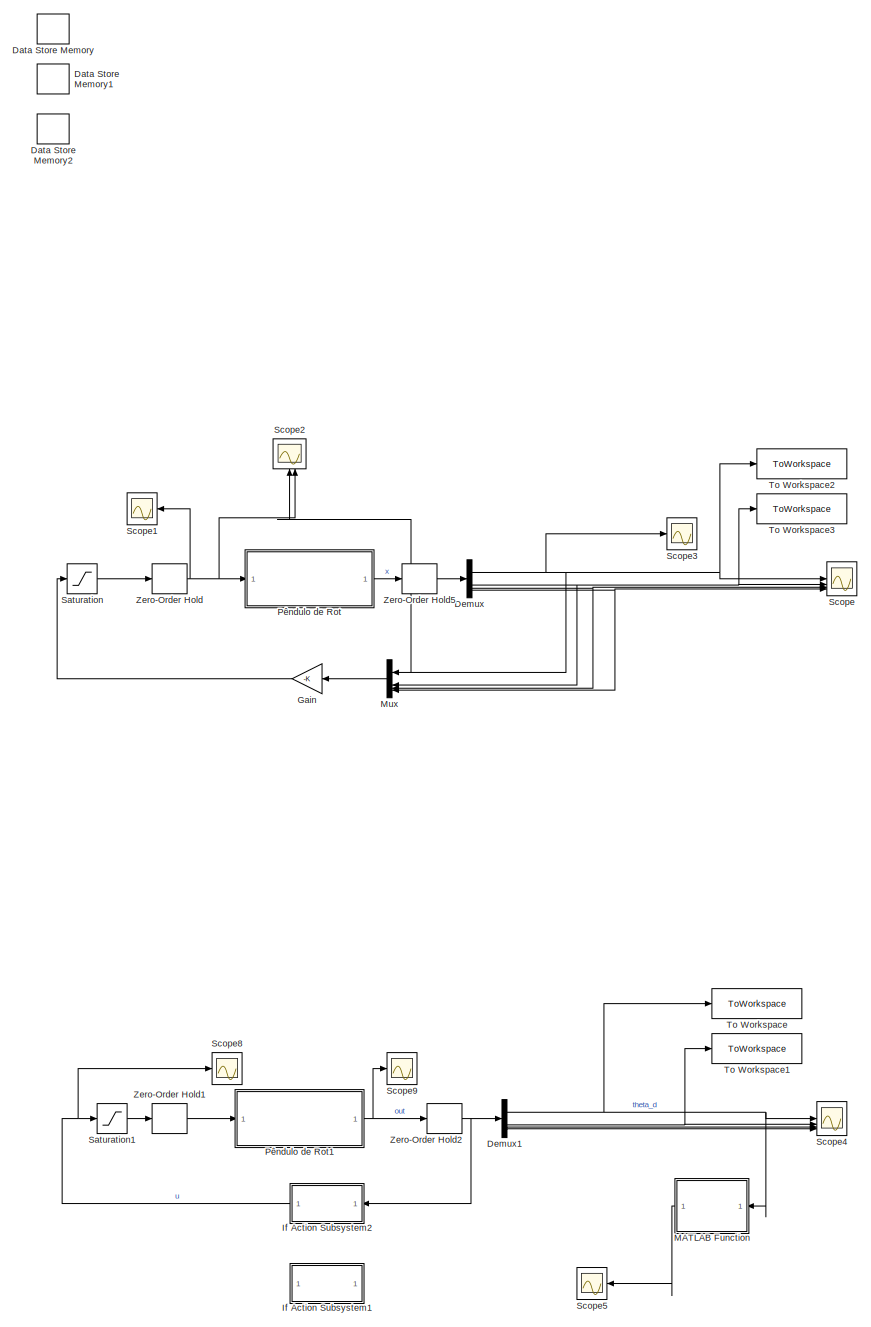
[diagram: root canvas - part 1/2, right side, full height]
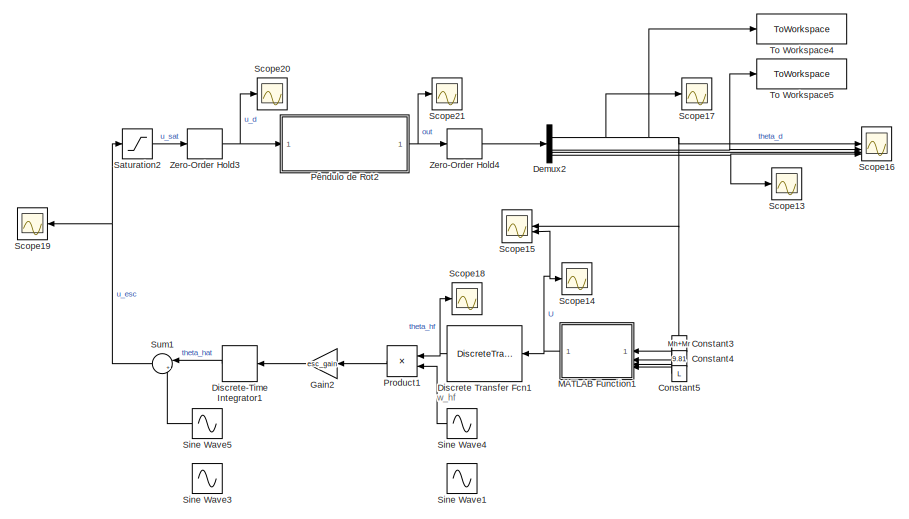
[diagram: root canvas - part 2/2, bottom left region]
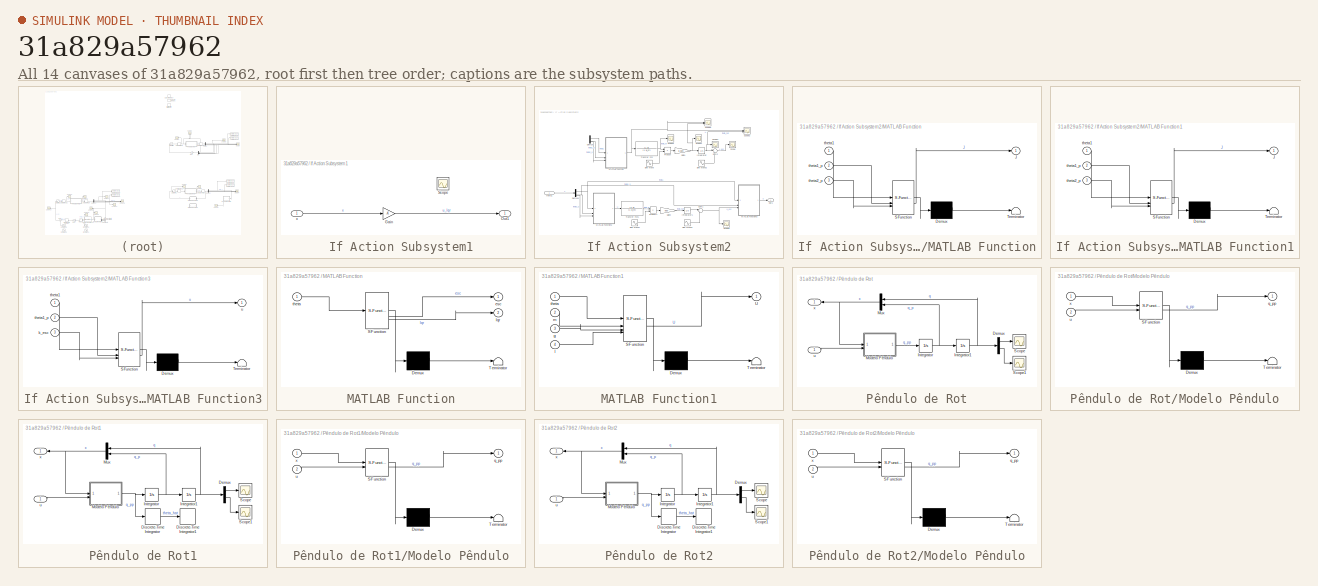
[diagram: thumbnail index - all 14 canvases of the model, root first then tree order]
MODEL slx_31a829a57962
KIND model
CONFIG AbsTol = auto
CONFIG EnableMultiTasking = on
CONFIG FixedStep = 1e-4
CONFIG MaxStep = auto
CONFIG MinStep = auto
CONFIG RelTol = 1e-3
CONFIG SampleTimeConstraint = Unconstrained
CONFIG SolverName = VariableStepAuto
CONFIG StartTime = 0.0
CONFIG StopFcn = send_to_visualizer(out.theta1_out, out.theta2_out)\n
CONFIG StopTime = 20
BLOCK [Constant] Constant3
  Commented = on
  Value = Mh+Mr
BLOCK [Constant] Constant4
  Commented = on
  Value = 9.81
BLOCK [Constant] Constant5
  Commented = on
  Value = L
BLOCK [DataStoreMemory] Data Store Memory
  DataStoreName = u_ant
  OutDataTypeStr = double
  ShowAdditionalParam = off
  SignalType = real
BLOCK [DataStoreMemory] Data Store Memory1
  DataStoreName = vel_uf_ant
  OutDataTypeStr = double
  ReadBeforeWriteMsg = warning
  ShowAdditionalParam = off
  SignalType = real
  WriteAfterReadMsg = warning
  WriteAfterWriteMsg = warning
BLOCK [DataStoreMemory] Data Store Memory2
  DataStoreName = vel_ant
  OutDataTypeStr = double
  ReadBeforeWriteMsg = warning
  ShowAdditionalParam = off
  SignalType = real
  WriteAfterReadMsg = warning
  WriteAfterWriteMsg = warning
BLOCK [Demux] Demux
  Commented = on
BLOCK [Demux] Demux1
BLOCK [Demux] Demux2
  Commented = on
BLOCK [DiscreteTransferFcn] Discrete Transfer Fcn1
  Commented = on
  Denominator = [den]
  InputPortMap = u0
  Numerator = [num]
BLOCK [DiscreteIntegrator] Discrete-Time Integrator1
  Commented = on
  ICPrevOutput = DiscIntNeverNeededParam
  ICPrevScaledInput = DiscIntNeverNeededParam
  InitialConditionSetting = Auto
  SampleTime = -1
BLOCK [Gain] Gain
  Commented = on
  Gain = -K
  Multiplication = Matrix(K*u)
BLOCK [Gain] Gain2
  Commented = on
  Gain = esc_gain
BLOCK [SubSystem] If Action Subsystem1
  Commented = on
  TreatAsAtomicUnit = on
BLOCK [Gain] If Action Subsystem1/Gain
  Gain = -K
  Multiplication = Matrix(K*u)
BLOCK [Outport] If Action Subsystem1/Out1
  IconDisplay = Signal name
BLOCK [Scope] If Action Subsystem1/Scope
  ActiveDisplayYMaximum = 69.774089352779029
  ActiveDisplayYMinimum = -4.4404726516390376
  DataLoggingVariableName = ScopeData12
  Floating = off
  GraphicalSettings = {"Style":{"BackgroundColor":[0.12941176470588237,0.12941176470588237,0.12941176470588237],"AxesColor":[0.07058823529411765,0.07058823529411765,0.07058823529411765],"LabelsColor":[0.8509803921568627,0.8509803921568627,0.8509803921568627],"PreserveColors":false,"Visible":[true],"LineStyle":["-"],"LineWidth":[1.5],"BarWidth":[0.9],"LineColor":["auto"],"LineFaceAlpha":[1],"LineEdgeAlpha":[1],"Marker":...<+1898ch>
  MultipleDisplayCache = [{"MaxYLimMag":69.774089352779029,"MaxYLimReal":69.774089352779029,"MinYLimMag":0,"MinYLimReal":-4.4404726516390376,"PlotAsMagnitudePhase":false,"ShowGrid":true,"ShowLegend":false,"Title":"%<SignalLabel>","YLabel":""}]
  NumInputPorts = 1
  ScopeFrameLocation = window
  WasSavedAsWebScope = on
  WindowPosition = [573.000000,270.000000,560.000000,420.000000,]
BLOCK [Inport] If Action Subsystem1/x
  IconDisplay = Signal name
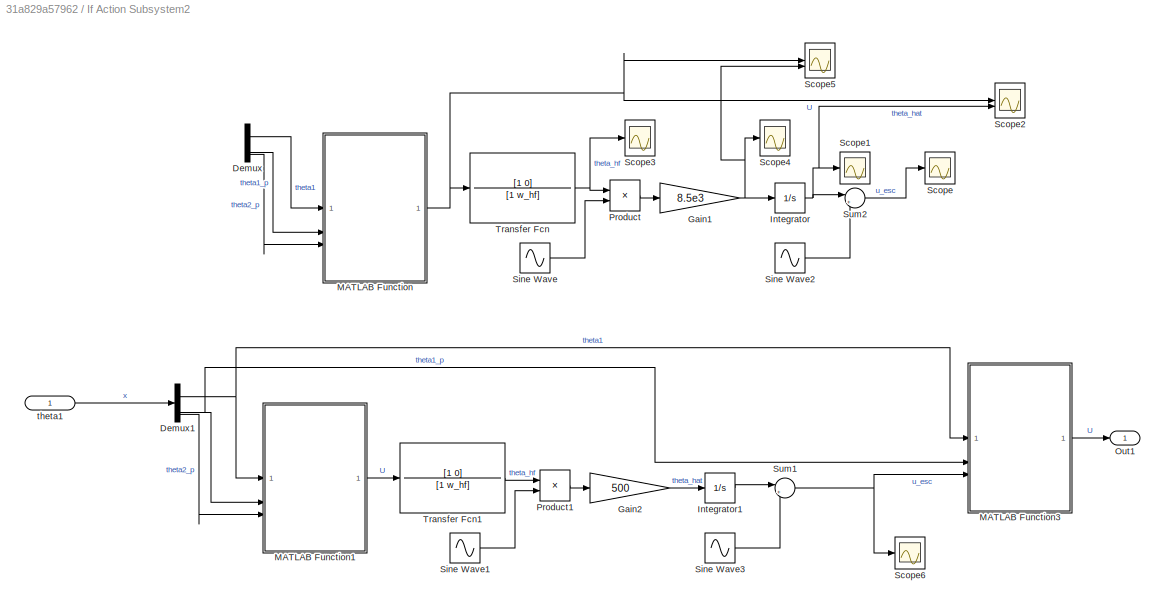
BLOCK [SubSystem] If Action Subsystem2
  TreatAsAtomicUnit = on
BLOCK [Demux] If Action Subsystem2/Demux
  Commented = on
BLOCK [Demux] If Action Subsystem2/Demux1
BLOCK [Gain] If Action Subsystem2/Gain1
  Commented = on
  Gain = 8.5e3
BLOCK [Gain] If Action Subsystem2/Gain2
  Gain = 500
BLOCK [Integrator] If Action Subsystem2/Integrator
  Commented = on
BLOCK [Integrator] If Action Subsystem2/Integrator1
  InitialCondition = k_init
BLOCK [SubSystem] If Action Subsystem2/MATLAB Function
  Commented = on
  ErrorFcn = Stateflow.Translate.translate
  PermitHierarchicalResolution = ExplicitOnly
  SFBlockType = MATLAB Function
  TreatAsAtomicUnit = on
BLOCK [Demux] If Action Subsystem2/MATLAB Function/ Demux 
  Outputs = 1
BLOCK [S-Function] If Action Subsystem2/MATLAB Function/ SFunction 
  EnableBusSupport = off
  FunctionName = sf_sfun
  Parameters = Jh,Jr,L,Mh,Mr,d
  PortCounts = [3 2]
  SFcnIsStateOwnerBlock = off
  SFunctionDeploymentMode = off
  Tag = Stateflow S-Function 7
BLOCK [Terminator] If Action Subsystem2/MATLAB Function/ Terminator 
BLOCK [Outport] If Action Subsystem2/MATLAB Function/J
BLOCK [Inport] If Action Subsystem2/MATLAB Function/theta1
BLOCK [Inport] If Action Subsystem2/MATLAB Function/theta1_p
  Port = 2
BLOCK [Inport] If Action Subsystem2/MATLAB Function/theta2_p
  Port = 3
BLOCK [SubSystem] If Action Subsystem2/MATLAB Function1
  ErrorFcn = Stateflow.Translate.translate
  PermitHierarchicalResolution = ExplicitOnly
  SFBlockType = MATLAB Function
  TreatAsAtomicUnit = on
BLOCK [Demux] If Action Subsystem2/MATLAB Function1/ Demux 
  Outputs = 1
BLOCK [S-Function] If Action Subsystem2/MATLAB Function1/ SFunction 
  EnableBusSupport = off
  FunctionName = sf_sfun
  Parameters = Jh,Jr,L,Mh,Mr,d
  PortCounts = [3 2]
  SFcnIsStateOwnerBlock = off
  SFunctionDeploymentMode = off
  Tag = Stateflow S-Function 6
BLOCK [Terminator] If Action Subsystem2/MATLAB Function1/ Terminator 
BLOCK [Outport] If Action Subsystem2/MATLAB Function1/J
BLOCK [Inport] If Action Subsystem2/MATLAB Function1/theta1
BLOCK [Inport] If Action Subsystem2/MATLAB Function1/theta1_p
  Port = 2
BLOCK [Inport] If Action Subsystem2/MATLAB Function1/theta2_p
  Port = 3
BLOCK [SubSystem] If Action Subsystem2/MATLAB Function3
  ErrorFcn = Stateflow.Translate.translate
  PermitHierarchicalResolution = ExplicitOnly
  SFBlockType = MATLAB Function
  TreatAsAtomicUnit = on
BLOCK [Demux] If Action Subsystem2/MATLAB Function3/ Demux 
  Outputs = 1
BLOCK [S-Function] If Action Subsystem2/MATLAB Function3/ SFunction 
  EnableBusSupport = off
  FunctionName = sf_sfun
  Parameters = Jh,L,Mh,Mr,d
  PortCounts = [3 2]
  SFcnIsStateOwnerBlock = off
  SFunctionDeploymentMode = off
  Tag = Stateflow S-Function 9
BLOCK [Terminator] If Action Subsystem2/MATLAB Function3/ Terminator 
BLOCK [Inport] If Action Subsystem2/MATLAB Function3/k_esc
  Port = 3
BLOCK [Inport] If Action Subsystem2/MATLAB Function3/theta1
BLOCK [Inport] If Action Subsystem2/MATLAB Function3/theta1_p
  Port = 2
BLOCK [Outport] If Action Subsystem2/MATLAB Function3/u
BLOCK [Outport] If Action Subsystem2/Out1
  IconDisplay = Signal name
BLOCK [Product] If Action Subsystem2/Product
  Commented = on
BLOCK [Product] If Action Subsystem2/Product1
BLOCK [Scope] If Action Subsystem2/Scope
  ActiveDisplayYMaximum = 1
  ActiveDisplayYMinimum = -1
  Commented = on
  DataLoggingVariableName = ScopeData13
  Floating = off
  GraphicalSettings = {"Style":{"BackgroundColor":[0.12941176470588237,0.12941176470588237,0.12941176470588237],"AxesColor":[0.07058823529411765,0.07058823529411765,0.07058823529411765],"LabelsColor":[0.8509803921568627,0.8509803921568627,0.8509803921568627],"PreserveColors":false,"Visible":[true],"LineStyle":["-"],"LineWidth":[1.5],"BarWidth":[0.9],"LineColor":["auto"],"LineFaceAlpha":[1],"LineEdgeAlpha":[1],"Marker":...<+1892ch>
  MultipleDisplayCache = [{"MaxYLimMag":1,"MaxYLimReal":1,"MinYLimMag":0,"MinYLimReal":-1,"PlotAsMagnitudePhase":false,"ShowGrid":true,"ShowLegend":false,"Title":"%<SignalLabel>","YLabel":""}]
  NumInputPorts = 1
  ScopeFrameLocation = window
  WasSavedAsWebScope = on
  WindowPosition = [573.000000,270.000000,560.000000,420.000000,]
BLOCK [Scope] If Action Subsystem2/Scope1
  ActiveDisplayYMaximum = -0.96848992459031114
  ActiveDisplayYMinimum = -3.2058024078374254
  Commented = on
  DataLoggingVariableName = ScopeData14
  Floating = off
  GraphicalSettings = {"AxesScalingProperties":{"AlignXAxis":"Center","AlignYAxis":"Center","AutoScaleXAxisLimits":false,"AxesScaling":"Manual","AxesScalingNumUpdates":10,"ExpandOnly":true,"ScaleAxesLimitsAtStop":false,"XAxisDataRange":100,"YAxisDataRange":80},"DisplayProperties":{"ColorOrder":["auto","auto","auto","auto","auto","auto","auto","auto","auto","auto","auto","auto","auto","auto","auto","auto","auto","auto",...<+2012ch>
  MultipleDisplayCache = [{"MaxYLimMag":3.5773774346009053,"MaxYLimReal":-0.96848992459031114,"MinYLimMag":0,"MinYLimReal":-3.2058024078374254,"PlotAsMagnitudePhase":false,"ShowGrid":true,"ShowLegend":false,"Title":"%<SignalLabel>","YLabel":""}]
  NumInputPorts = 1
  ScopeFrameLocation = window
  WasSavedAsWebScope = on
  WindowPosition = [0.000000,36.000000,1707.000000,889.000000,]
BLOCK [Scope] If Action Subsystem2/Scope2
  ActiveDisplayYMaximum = 0.054695354489563641
  ActiveDisplayYMinimum = -3.3789414590063629
  Commented = on
  DataLoggingVariableName = ScopeData7
  Floating = off
  GraphicalSettings = {"Style":{"BackgroundColor":[0.12941176470588237,0.12941176470588237,0.12941176470588237],"AxesColor":[0.07058823529411765,0.07058823529411765,0.07058823529411765],"LabelsColor":[0.8509803921568627,0.8509803921568627,0.8509803921568627],"PreserveColors":false,"Visible":[true,true],"LineStyle":["-","-"],"LineWidth":[1.5,1.5],"BarWidth":[0.9,0.9],"LineColor":["auto","auto"],"LineFaceAlpha":[1,1],"Li...<+2106ch>
  MultipleDisplayCache = [{"MaxYLimMag":3.5773774346009053,"MaxYLimReal":0.054695354489563641,"MinYLimMag":0,"MinYLimReal":-3.3789414590063629,"PlotAsMagnitudePhase":false,"ShowGrid":true,"ShowLegend":false,"Title":"%<SignalLabel>","YLabel":""}]
  NumInputPorts = 2
  ScopeFrameLocation = window
  WasSavedAsWebScope = on
  WindowPosition = [228.000000,42.000000,560.000000,420.000000,]
BLOCK [Scope] If Action Subsystem2/Scope3
  ActiveDisplayYMaximum = 0.013260172312204901
  ActiveDisplayYMinimum = -0.021431987322528941
  Commented = on
  DataLoggingVariableName = ScopeData8
  Floating = off
  GraphicalSettings = {"AxesScalingProperties":{"AlignXAxis":"Center","AlignYAxis":"Center","AutoScaleXAxisLimits":false,"AxesScaling":"Manual","AxesScalingNumUpdates":10,"ExpandOnly":true,"ScaleAxesLimitsAtStop":false,"XAxisDataRange":100,"YAxisDataRange":80},"DisplayProperties":{"ColorOrder":["auto","auto","auto","auto","auto","auto","auto","auto","auto","auto","auto","auto","auto","auto","auto","auto","auto","auto",...<+2016ch>
  MultipleDisplayCache = [{"MaxYLimMag":0.53995318792398028,"MaxYLimReal":0.013260172312204901,"MinYLimMag":0,"MinYLimReal":-0.021431987322528941,"PlotAsMagnitudePhase":false,"ShowGrid":true,"ShowLegend":false,"Title":"%<SignalLabel>","YLabel":""}]
  NumInputPorts = 1
  ScopeFrameLocation = window
  WasSavedAsWebScope = on
  WindowPosition = [1.000000,49.000000,1707.000000,889.000000,]
BLOCK [Scope] If Action Subsystem2/Scope4
  ActiveDisplayYMaximum = 8.6338341823384948
  ActiveDisplayYMinimum = -4.2044520300748793
  Commented = on
  DataLoggingVariableName = ScopeData24
  Floating = off
  GraphicalSettings = {"AxesScalingProperties":{"AlignXAxis":"Center","AlignYAxis":"Center","AutoScaleXAxisLimits":false,"AxesScaling":"Manual","AxesScalingNumUpdates":10,"ExpandOnly":true,"ScaleAxesLimitsAtStop":false,"XAxisDataRange":100,"YAxisDataRange":80},"DisplayProperties":{"ColorOrder":["auto","auto","auto","auto","auto","auto","auto","auto","auto","auto","auto","auto","auto","auto","auto","auto","auto","auto",...<+2002ch>
  MultipleDisplayCache = [{"MaxYLimMag":2460.2753626934718,"MaxYLimReal":8.6338341823384948,"MinYLimMag":0,"MinYLimReal":-4.2044520300748793,"PlotAsMagnitudePhase":false,"ShowGrid":true,"ShowLegend":false,"Title":"%<SignalLabel>","YLabel":""}]
  NumInputPorts = 1
  ScopeFrameLocation = window
  WasSavedAsWebScope = on
  WindowPosition = [1.000000,49.000000,1707.000000,889.000000,]
BLOCK [Scope] If Action Subsystem2/Scope5
  ActiveDisplayYMaximum = 0.58612214942196117
  ActiveDisplayYMinimum = -0.24757580720707464
  Commented = on
  DataLoggingVariableName = ScopeData25
  Floating = off
  GraphicalSettings = {"Style":{"BackgroundColor":[0.12941176470588237,0.12941176470588237,0.12941176470588237],"AxesColor":[0.07058823529411765,0.07058823529411765,0.07058823529411765],"LabelsColor":[0.8509803921568627,0.8509803921568627,0.8509803921568627],"PreserveColors":false,"Visible":[true,true],"LineStyle":["-","-"],"LineWidth":[1.5,1.5],"BarWidth":[0.9,0.9],"LineColor":["auto","auto"],"LineFaceAlpha":[1,1],"Li...<+2098ch>
  MultipleDisplayCache = [{"MaxYLimMag":2460.2753626934718,"MaxYLimReal":0.58612214942196117,"MinYLimMag":0,"MinYLimReal":-0.24757580720707464,"PlotAsMagnitudePhase":false,"ShowGrid":true,"ShowLegend":true,"Title":"%<SignalLabel>","YLabel":""}]
  NumInputPorts = 2
  ScopeFrameLocation = window
  ShowLegend = on
  Visible = on
  WasSavedAsWebScope = on
  WindowPosition = [1.000000,49.000000,1707.000000,889.000000,]
BLOCK [Scope] If Action Subsystem2/Scope6
  ActiveDisplayYMaximum = 1
  ActiveDisplayYMinimum = -1
  DataLoggingVariableName = ScopeData26
  Floating = off
  GraphicalSettings = {"Style":{"BackgroundColor":[0.12941176470588237,0.12941176470588237,0.12941176470588237],"AxesColor":[0.07058823529411765,0.07058823529411765,0.07058823529411765],"LabelsColor":[0.8509803921568627,0.8509803921568627,0.8509803921568627],"PreserveColors":false,"Visible":[true],"LineStyle":["-"],"LineWidth":[1.5],"BarWidth":[0.9],"LineColor":["auto"],"LineFaceAlpha":[1],"LineEdgeAlpha":[1],"Marker":...<+1898ch>
  MultipleDisplayCache = [{"MaxYLimMag":1,"MaxYLimReal":1,"MinYLimMag":0,"MinYLimReal":-1,"PlotAsMagnitudePhase":false,"ShowGrid":true,"ShowLegend":false,"Title":"%<SignalLabel>","YLabel":""}]
  NumInputPorts = 1
  ScopeFrameLocation = window
  WasSavedAsWebScope = on
  WindowPosition = [1.000000,49.000000,1707.000000,889.000000,]
BLOCK [Sin] If Action Subsystem2/Sine Wave
  Commented = on
  Frequency = mod_freq
  SampleTime = 0
  Samples = round(2*pi/(mod_freq*2e-4))
BLOCK [Sin] If Action Subsystem2/Sine Wave1
  Frequency = mod_freq
  SampleTime = 0
  Samples = round(2*pi/(mod_freq*2e-4))
BLOCK [Sin] If Action Subsystem2/Sine Wave2
  Amplitude = 0.05
  Commented = on
  Frequency = mod_freq
  SampleTime = 0
  Samples = round(2*pi/(mod_freq*2e-4))
BLOCK [Sin] If Action Subsystem2/Sine Wave3
  Amplitude = esc_amp
  Frequency = mod_freq
  SampleTime = 0
  Samples = round(2*pi/(mod_freq*2e-4))
BLOCK [Sum] If Action Subsystem2/Sum1
  Inputs = |++
BLOCK [Sum] If Action Subsystem2/Sum2
  Commented = on
  Inputs = |++
BLOCK [TransferFcn] If Action Subsystem2/Transfer Fcn
  Commented = on
  Denominator = [1 w_hf]
  Numerator = [1 0]
BLOCK [TransferFcn] If Action Subsystem2/Transfer Fcn1
  Denominator = [1 w_hf]
  Numerator = [1 0]
BLOCK [Inport] If Action Subsystem2/theta1
  IconDisplay = Signal name
BLOCK [SubSystem] MATLAB Function
  Commented = on
  ErrorFcn = Stateflow.Translate.translate
  PermitHierarchicalResolution = ExplicitOnly
  SFBlockType = MATLAB Function
  TreatAsAtomicUnit = on
BLOCK [Demux] MATLAB Function/ Demux 
  Outputs = 1
BLOCK [S-Function] MATLAB Function/ SFunction 
  EnableBusSupport = off
  FunctionName = sf_sfun
  PortCounts = [1 3]
  SFcnIsStateOwnerBlock = off
  SFunctionDeploymentMode = off
  Tag = Stateflow S-Function 3
BLOCK [Terminator] MATLAB Function/ Terminator 
BLOCK [Outport] MATLAB Function/esc
BLOCK [Outport] MATLAB Function/lqr
  Port = 2
BLOCK [Inport] MATLAB Function/theta
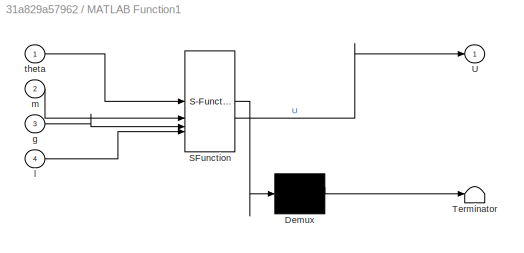
BLOCK [SubSystem] MATLAB Function1
  Commented = on
  ErrorFcn = Stateflow.Translate.translate
  PermitHierarchicalResolution = ExplicitOnly
  SFBlockType = MATLAB Function
  TreatAsAtomicUnit = on
BLOCK [Demux] MATLAB Function1/ Demux 
  Outputs = 1
BLOCK [S-Function] MATLAB Function1/ SFunction 
  EnableBusSupport = off
  FunctionName = sf_sfun
  PortCounts = [4 2]
  SFcnIsStateOwnerBlock = off
  SFunctionDeploymentMode = off
  Tag = Stateflow S-Function 4
BLOCK [Terminator] MATLAB Function1/ Terminator 
BLOCK [Outport] MATLAB Function1/U
BLOCK [Inport] MATLAB Function1/g
  Port = 3
BLOCK [Inport] MATLAB Function1/l
  Port = 4
BLOCK [Inport] MATLAB Function1/m
  Port = 2
BLOCK [Inport] MATLAB Function1/theta
BLOCK [Mux] Mux
  Commented = on
  DisplayOption = bar
BLOCK [Product] Product1
  Commented = on
BLOCK [SubSystem] Pêndulo de Rot
  Commented = on
BLOCK [Demux] Pêndulo de Rot/Demux
  Outputs = 2
BLOCK [Integrator] Pêndulo de Rot/Integrator
  InitialCondition = xp_ic
BLOCK [Integrator] Pêndulo de Rot/Integrator1
  InitialCondition = x_ic
BLOCK [SubSystem] Pêndulo de Rot/Modelo Pêndulo
  ErrorFcn = Stateflow.Translate.translate
  PermitHierarchicalResolution = ExplicitOnly
  SFBlockType = MATLAB Function
  TreatAsAtomicUnit = on
BLOCK [Demux] Pêndulo de Rot/Modelo Pêndulo/ Demux 
  Outputs = 1
BLOCK [S-Function] Pêndulo de Rot/Modelo Pêndulo/ SFunction 
  EnableBusSupport = off
  FunctionName = sf_sfun
  PortCounts = [2 2]
  SFcnIsStateOwnerBlock = off
  SFunctionDeploymentMode = off
  Tag = Stateflow S-Function 1
BLOCK [Terminator] Pêndulo de Rot/Modelo Pêndulo/ Terminator 
BLOCK [Outport] Pêndulo de Rot/Modelo Pêndulo/q_pp
BLOCK [Inport] Pêndulo de Rot/Modelo Pêndulo/u
  Port = 2
BLOCK [Inport] Pêndulo de Rot/Modelo Pêndulo/x
BLOCK [Mux] Pêndulo de Rot/Mux
  DisplayOption = bar
  Inputs = 2
  NameLocation = top
BLOCK [Scope] Pêndulo de Rot/Scope
  ActiveDisplayYMaximum = 6.9006379196709613
  ActiveDisplayYMinimum = -4.469489019623639
  DataLoggingVariableName = ScopeData1
  Floating = off
  GraphicalSettings = {"Style":{"BackgroundColor":[0.12941176470588237,0.12941176470588237,0.12941176470588237],"AxesColor":[0.07058823529411765,0.07058823529411765,0.07058823529411765],"LabelsColor":[0.8509803921568627,0.8509803921568627,0.8509803921568627],"PreserveColors":false,"Visible":[true],"LineStyle":["-"],"LineWidth":[1.5],"BarWidth":[0.9],"LineColor":["auto"],"LineFaceAlpha":[1],"LineEdgeAlpha":[1],"Marker":...<+1993ch>  <repeated x6 — deduplicated; at blocks: Scope, Scope1>
  MultipleDisplayCache = [{"MaxYLimMag":3.5343116838670472,"MaxYLimReal":6.9006379196709613,"MinYLimMag":0,"MinYLimReal":-4.469489019623639,"PlotAsMagnitudePhase":false,"ShowGrid":true,"ShowLegend":true,"Title":"%<SignalLabel>","YLabel":""}]  <repeated x6 — deduplicated; at blocks: Scope, Scope1>
  NumInputPorts = 1
  ScopeFrameLocation = window
  ShowLegend = on
  WasSavedAsWebScope = on
  WindowPosition = [558.000000,439.000000,560.000000,420.000000,]
BLOCK [Scope] Pêndulo de Rot/Scope1
  ActiveDisplayYMaximum = 6.9006379196709613
  ActiveDisplayYMinimum = -4.469489019623639
  DataLoggingVariableName = ScopeData2
  Floating = off
  NumInputPorts = 1
  ScopeFrameLocation = window
  ShowLegend = on
  WasSavedAsWebScope = on
  WindowPosition = [558.000000,439.000000,560.000000,420.000000,]
BLOCK [Inport] Pêndulo de Rot/u
BLOCK [Outport] Pêndulo de Rot/x
BLOCK [SubSystem] Pêndulo de Rot1
BLOCK [Demux] Pêndulo de Rot1/Demux
  Outputs = 2
BLOCK [DiscreteIntegrator] Pêndulo de Rot1/Discrete-Time Integrator
  Commented = on
  ICPrevOutput = DiscIntNeverNeededParam
  ICPrevScaledInput = DiscIntNeverNeededParam
  InitialCondition = xp_ic
  InitialConditionSetting = Auto
  SampleTime = -1
BLOCK [DiscreteIntegrator] Pêndulo de Rot1/Discrete-Time Integrator1
  Commented = on
  ICPrevOutput = DiscIntNeverNeededParam
  ICPrevScaledInput = DiscIntNeverNeededParam
  InitialCondition = x_ic
  InitialConditionSetting = Auto
  SampleTime = -1
BLOCK [Integrator] Pêndulo de Rot1/Integrator
  InitialCondition = xp_ic
BLOCK [Integrator] Pêndulo de Rot1/Integrator1
  InitialCondition = x_ic
BLOCK [SubSystem] Pêndulo de Rot1/Modelo Pêndulo
  ErrorFcn = Stateflow.Translate.translate
  PermitHierarchicalResolution = ExplicitOnly
  SFBlockType = MATLAB Function
  TreatAsAtomicUnit = on
BLOCK [Demux] Pêndulo de Rot1/Modelo Pêndulo/ Demux 
  Outputs = 1
BLOCK [S-Function] Pêndulo de Rot1/Modelo Pêndulo/ SFunction 
  EnableBusSupport = off
  FunctionName = sf_sfun
  PortCounts = [2 2]
  SFcnIsStateOwnerBlock = off
  SFunctionDeploymentMode = off
  Tag = Stateflow S-Function 2
BLOCK [Terminator] Pêndulo de Rot1/Modelo Pêndulo/ Terminator 
BLOCK [Outport] Pêndulo de Rot1/Modelo Pêndulo/q_pp
BLOCK [Inport] Pêndulo de Rot1/Modelo Pêndulo/u
  Port = 2
BLOCK [Inport] Pêndulo de Rot1/Modelo Pêndulo/x
BLOCK [Mux] Pêndulo de Rot1/Mux
  DisplayOption = bar
  Inputs = 2
  NameLocation = top
BLOCK [Scope] Pêndulo de Rot1/Scope
  ActiveDisplayYMaximum = 6.9006379196709613
  ActiveDisplayYMinimum = -4.469489019623639
  DataLoggingVariableName = ScopeData1
  Floating = off
  NumInputPorts = 1
  ScopeFrameLocation = window
  ShowLegend = on
  WasSavedAsWebScope = on
  WindowPosition = [558.000000,439.000000,560.000000,420.000000,]
BLOCK [Scope] Pêndulo de Rot1/Scope1
  ActiveDisplayYMaximum = 6.9006379196709613
  ActiveDisplayYMinimum = -4.469489019623639
  DataLoggingVariableName = ScopeData2
  Floating = off
  NumInputPorts = 1
  ScopeFrameLocation = window
  ShowLegend = on
  WasSavedAsWebScope = on
  WindowPosition = [558.000000,439.000000,560.000000,420.000000,]
BLOCK [Inport] Pêndulo de Rot1/u
BLOCK [Outport] Pêndulo de Rot1/x
BLOCK [SubSystem] Pêndulo de Rot2
  Commented = on
BLOCK [Demux] Pêndulo de Rot2/Demux
  Outputs = 2
BLOCK [DiscreteIntegrator] Pêndulo de Rot2/Discrete-Time Integrator
  Commented = on
  ICPrevOutput = DiscIntNeverNeededParam
  ICPrevScaledInput = DiscIntNeverNeededParam
  InitialCondition = xp_ic
  InitialConditionSetting = Auto
  SampleTime = -1
BLOCK [DiscreteIntegrator] Pêndulo de Rot2/Discrete-Time Integrator1
  Commented = on
  ICPrevOutput = DiscIntNeverNeededParam
  ICPrevScaledInput = DiscIntNeverNeededParam
  InitialCondition = x_ic
  InitialConditionSetting = Auto
  SampleTime = -1
BLOCK [Integrator] Pêndulo de Rot2/Integrator
  InitialCondition = xp_ic
BLOCK [Integrator] Pêndulo de Rot2/Integrator1
  InitialCondition = x_ic
BLOCK [SubSystem] Pêndulo de Rot2/Modelo Pêndulo
  ErrorFcn = Stateflow.Translate.translate
  PermitHierarchicalResolution = ExplicitOnly
  SFBlockType = MATLAB Function
  TreatAsAtomicUnit = on
BLOCK [Demux] Pêndulo de Rot2/Modelo Pêndulo/ Demux 
  Outputs = 1
BLOCK [S-Function] Pêndulo de Rot2/Modelo Pêndulo/ SFunction 
  EnableBusSupport = off
  FunctionName = sf_sfun
  PortCounts = [2 2]
  SFcnIsStateOwnerBlock = off
  SFunctionDeploymentMode = off
  Tag = Stateflow S-Function 5
BLOCK [Terminator] Pêndulo de Rot2/Modelo Pêndulo/ Terminator 
BLOCK [Outport] Pêndulo de Rot2/Modelo Pêndulo/q_pp
BLOCK [Inport] Pêndulo de Rot2/Modelo Pêndulo/u
  Port = 2
BLOCK [Inport] Pêndulo de Rot2/Modelo Pêndulo/x
BLOCK [Mux] Pêndulo de Rot2/Mux
  DisplayOption = bar
  Inputs = 2
  NameLocation = top
BLOCK [Scope] Pêndulo de Rot2/Scope
  ActiveDisplayYMaximum = 6.9006379196709613
  ActiveDisplayYMinimum = -4.469489019623639
  DataLoggingVariableName = ScopeData1
  Floating = off
  NumInputPorts = 1
  ScopeFrameLocation = window
  ShowLegend = on
  WasSavedAsWebScope = on
  WindowPosition = [558.000000,439.000000,560.000000,420.000000,]
BLOCK [Scope] Pêndulo de Rot2/Scope1
  ActiveDisplayYMaximum = 6.9006379196709613
  ActiveDisplayYMinimum = -4.469489019623639
  DataLoggingVariableName = ScopeData2
  Floating = off
  NumInputPorts = 1
  ScopeFrameLocation = window
  ShowLegend = on
  WasSavedAsWebScope = on
  WindowPosition = [558.000000,439.000000,560.000000,420.000000,]
BLOCK [Inport] Pêndulo de Rot2/u
BLOCK [Outport] Pêndulo de Rot2/x
BLOCK [Saturate] Saturation
  Commented = on
  LowerLimit = -1
  UpperLimit = 1
BLOCK [Saturate] Saturation1
  LowerLimit = -1
  UpperLimit = 1
BLOCK [Saturate] Saturation2
  Commented = on
  LowerLimit = -12
  UpperLimit = 12
BLOCK [Scope] Scope
  ActiveDisplayYMaximum = 0.3018758336404363
  ActiveDisplayYMinimum = -0.098888624772432612
  Commented = on
  Floating = off
  GraphicalSettings = {"Style":{"BackgroundColor":[0.12941176470588237,0.12941176470588237,0.12941176470588237],"AxesColor":[0.07058823529411765,0.07058823529411765,0.07058823529411765],"LabelsColor":[0.8509803921568627,0.8509803921568627,0.8509803921568627],"PreserveColors":false,"Visible":[true,true,true,true],"LineStyle":["-","-","-","-"],"LineWidth":[1.5,1.5,1.5,1.5],"BarWidth":[0.9,0.9,0.9,0.9],"LineColor":["auto"...<+3286ch>
  LayoutDimensionsString = [4,1]
  MultipleDisplayCache = [{"MaxYLimMag":0.3018758336404363,"MaxYLimReal":0.3018758336404363,"MinYLimMag":0,"MinYLimReal":-0.098888624772432612,"PlotAsMagnitudePhase":false,"ShowGrid":true,"ShowLegend":false,"Title":"%<SignalLabel>","YLabel":""},{"MaxYLimMag":3.678100458711588,"MaxYLimReal":3.678100458711588,"MinYLimMag":0,"MinYLimReal":-0.40867782874573189,"PlotAsMagnitudePhase":false,"ShowGrid":true,"ShowLegend":false,"T...<+471ch>
  NumInputPorts = 4
  ScopeFrameLocation = window
  WasSavedAsWebScope = on
  WindowPosition = [414.000000,301.000000,560.000000,420.000000,]
BLOCK [Scope] Scope1
  ActiveDisplayYMaximum = 1.1
  ActiveDisplayYMinimum = 0.9
  Commented = on
  DataLoggingVariableName = ScopeData3
  Floating = off
  GraphicalSettings = {"Style":{"BackgroundColor":[0.12941176470588237,0.12941176470588237,0.12941176470588237],"AxesColor":[0.07058823529411765,0.07058823529411765,0.07058823529411765],"LabelsColor":[0.8509803921568627,0.8509803921568627,0.8509803921568627],"PreserveColors":false,"Visible":[true],"LineStyle":["-"],"LineWidth":[1.5],"BarWidth":[0.9],"LineColor":["auto"],"LineFaceAlpha":[1],"LineEdgeAlpha":[1],"Marker":...<+1927ch>
  MultipleDisplayCache = [{"MaxYLimMag":1.1,"MaxYLimReal":1.1,"MinYLimMag":0.9,"MinYLimReal":0.9,"PlotAsMagnitudePhase":false,"ShowGrid":true,"ShowLegend":false,"Title":"%<SignalLabel>","YLabel":""}]
  NumInputPorts = 1
  ScopeFrameLocation = window
  WasSavedAsWebScope = on
  WindowPosition = [137.000000,283.000000,560.000000,420.000000,]
BLOCK [Scope] Scope13
  ActiveDisplayYMaximum = 9.08544811182352
  ActiveDisplayYMinimum = -16.31486477328804
  Commented = on
  DataLoggingVariableName = ScopeData15
  Floating = off
  GraphicalSettings = {"Style":{"BackgroundColor":[0.12941176470588237,0.12941176470588237,0.12941176470588237],"AxesColor":[0.07058823529411765,0.07058823529411765,0.07058823529411765],"LabelsColor":[0.8509803921568627,0.8509803921568627,0.8509803921568627],"PreserveColors":false,"Visible":[true],"LineStyle":["-"],"LineWidth":[1.5],"BarWidth":[0.9],"LineColor":["auto"],"LineFaceAlpha":[1],"LineEdgeAlpha":[1],"Marker":...<+1995ch>
  MultipleDisplayCache = [{"MaxYLimMag":13.975862009209836,"MaxYLimReal":9.08544811182352,"MinYLimMag":0,"MinYLimReal":-16.31486477328804,"PlotAsMagnitudePhase":false,"ShowGrid":true,"ShowLegend":false,"Title":"%<SignalLabel>","YLabel":""}]
  NumInputPorts = 1
  ScopeFrameLocation = window
  WasSavedAsWebScope = on
  WindowPosition = [128.000000,120.000000,1383.000000,683.000000,]
BLOCK [Scope] Scope14
  ActiveDisplayYMaximum = 0.10098357051691505
  ActiveDisplayYMinimum = -0.9244908487241017
  Commented = on
  DataLoggingVariableName = ScopeData16
  Floating = off
  GraphicalSettings = {"Style":{"BackgroundColor":[0.12941176470588237,0.12941176470588237,0.12941176470588237],"AxesColor":[0.07058823529411765,0.07058823529411765,0.07058823529411765],"LabelsColor":[0.8509803921568627,0.8509803921568627,0.8509803921568627],"PreserveColors":false,"Visible":[true],"LineStyle":["-"],"LineWidth":[1.5],"BarWidth":[0.9],"LineColor":["auto"],"LineFaceAlpha":[1],"LineEdgeAlpha":[1],"Marker":...<+1981ch>
  MultipleDisplayCache = [{"MaxYLimMag":0.9244908487241017,"MaxYLimReal":0.10098357051691505,"MinYLimMag":0,"MinYLimReal":-0.9244908487241017,"PlotAsMagnitudePhase":false,"ShowGrid":true,"ShowLegend":false,"Title":"%<SignalLabel>","YLabel":""}]
  NumInputPorts = 1
  ScopeFrameLocation = window
  WasSavedAsWebScope = on
  WindowPosition = [128.000000,120.000000,1383.000000,683.000000,]
BLOCK [Scope] Scope15
  ActiveDisplayYMaximum = 5.2203237501157735
  ActiveDisplayYMinimum = 4.2300428343533376
  Commented = on
  DataLoggingVariableName = ScopeData17
  Floating = off
  GraphicalSettings = {"AxesScalingProperties":{"AlignXAxis":"Center","AlignYAxis":"Center","AutoScaleXAxisLimits":false,"AxesScaling":"Manual","AxesScalingNumUpdates":10,"ExpandOnly":true,"ScaleAxesLimitsAtStop":false,"XAxisDataRange":100,"YAxisDataRange":80},"DisplayProperties":{"ColorOrder":["auto","auto","auto","auto","auto","auto","auto","auto","auto","auto","auto","auto","auto","auto","auto","auto","auto","auto",...<+2079ch>
  MultipleDisplayCache = [{"MaxYLimMag":5.8215680743860627,"MaxYLimReal":5.2203237501157735,"MinYLimMag":0,"MinYLimReal":4.2300428343533376,"PlotAsMagnitudePhase":false,"ShowGrid":true,"ShowLegend":false,"Title":"%<SignalLabel>","YLabel":""}]
  NumInputPorts = 2
  ScopeFrameLocation = window
  WasSavedAsWebScope = on
  WindowPosition = [128.000000,120.000000,1383.000000,683.000000,]
BLOCK [Scope] Scope16
  ActiveDisplayYMaximum = 5.7135033218718032
  ActiveDisplayYMinimum = -0.537870966208293
  Commented = on
  DataLoggingVariableName = ScopeData18
  Floating = off
  GraphicalSettings = {"AxesScalingProperties":{"AlignXAxis":"Center","AlignYAxis":"Center","AutoScaleXAxisLimits":false,"AxesScaling":"Manual","AxesScalingNumUpdates":10,"ExpandOnly":true,"ScaleAxesLimitsAtStop":false,"XAxisDataRange":100,"YAxisDataRange":80},"DisplayProperties":{"ColorOrder":["auto","auto","auto","auto","auto","auto","auto","auto","auto","auto","auto","auto","auto","auto","auto","auto","auto","auto",...<+3314ch>
  LayoutDimensionsString = [4,1]
  MultipleDisplayCache = [{"MaxYLimMag":5.7135033218718032,"MaxYLimReal":5.7135033218718032,"MinYLimMag":0,"MinYLimReal":-0.537870966208293,"PlotAsMagnitudePhase":false,"ShowGrid":true,"ShowLegend":false,"Title":"%<SignalLabel>","YLabel":""},{"MaxYLimMag":2.4766605284805014,"MaxYLimReal":1.7207593898114011,"MinYLimMag":0,"MinYLimReal":-2.4766605284805014,"PlotAsMagnitudePhase":false,"ShowGrid":true,"ShowLegend":false,"Tit...<+468ch>
  NumInputPorts = 4
  ScopeFrameLocation = window
  WasSavedAsWebScope = on
  WindowPosition = [1.000000,49.000000,1707.000000,889.000000,]
BLOCK [Scope] Scope17
  ActiveDisplayYMaximum = 4.1753725629581435
  ActiveDisplayYMinimum = 2.9767729826768266
  Commented = on
  DataLoggingVariableName = ScopeData19
  Floating = off
  GraphicalSettings = {"Style":{"BackgroundColor":[0.12941176470588237,0.12941176470588237,0.12941176470588237],"AxesColor":[0.07058823529411765,0.07058823529411765,0.07058823529411765],"LabelsColor":[0.8509803921568627,0.8509803921568627,0.8509803921568627],"PreserveColors":false,"Visible":[true],"LineStyle":["-"],"LineWidth":[1.5],"BarWidth":[0.9],"LineColor":["auto"],"LineFaceAlpha":[1],"LineEdgeAlpha":[1],"Marker":...<+1995ch>
  MultipleDisplayCache = [{"MaxYLimMag":5.707020268799214,"MaxYLimReal":4.1753725629581435,"MinYLimMag":0,"MinYLimReal":2.9767729826768266,"PlotAsMagnitudePhase":false,"ShowGrid":true,"ShowLegend":false,"Title":"%<SignalLabel>","YLabel":""}]
  NumInputPorts = 1
  ScopeFrameLocation = window
  WasSavedAsWebScope = on
  WindowPosition = [1.000000,49.000000,1707.000000,889.000000,]
BLOCK [Scope] Scope18
  ActiveDisplayYMaximum = 1
  ActiveDisplayYMinimum = -1
  Commented = on
  DataLoggingVariableName = ScopeData20
  Floating = off
  GraphicalSettings = {"Style":{"BackgroundColor":[0.12941176470588237,0.12941176470588237,0.12941176470588237],"AxesColor":[0.07058823529411765,0.07058823529411765,0.07058823529411765],"LabelsColor":[0.8509803921568627,0.8509803921568627,0.8509803921568627],"PreserveColors":false,"Visible":[true],"LineStyle":["-"],"LineWidth":[1.5],"BarWidth":[0.9],"LineColor":["auto"],"LineFaceAlpha":[1],"LineEdgeAlpha":[1],"Marker":...<+2006ch>
  MultipleDisplayCache = [{"MaxYLimMag":1,"MaxYLimReal":1,"MinYLimMag":0,"MinYLimReal":-1,"PlotAsMagnitudePhase":false,"ShowGrid":true,"ShowLegend":false,"Title":"%<SignalLabel>","YLabel":""}]
  NumInputPorts = 1
  ScopeFrameLocation = window
  WasSavedAsWebScope = on
  WindowPosition = [573.000000,270.000000,560.000000,420.000000,]
BLOCK [Scope] Scope19
  ActiveDisplayYMaximum = 0.18698042473953164
  ActiveDisplayYMinimum = -0.14582093757057762
  Commented = on
  DataLoggingVariableName = ScopeData21
  Floating = off
  GraphicalSettings = {"AxesScalingProperties":{"AlignXAxis":"Center","AlignYAxis":"Center","AutoScaleXAxisLimits":false,"AxesScaling":"Manual","AxesScalingNumUpdates":10,"ExpandOnly":true,"ScaleAxesLimitsAtStop":false,"XAxisDataRange":100,"YAxisDataRange":80},"DisplayProperties":{"ColorOrder":["auto","auto","auto","auto","auto","auto","auto","auto","auto","auto","auto","auto","auto","auto","auto","auto","auto","auto",...<+2004ch>
  MultipleDisplayCache = [{"MaxYLimMag":0.1194863555208856,"MaxYLimReal":0.18698042473953164,"MinYLimMag":0,"MinYLimReal":-0.14582093757057762,"PlotAsMagnitudePhase":false,"ShowGrid":true,"ShowLegend":false,"Title":"%<SignalLabel>","YLabel":""}]
  NumInputPorts = 1
  ScopeFrameLocation = window
  WasSavedAsWebScope = on
  WindowPosition = [1.000000,49.000000,1707.000000,889.000000,]
BLOCK [Scope] Scope2
  ActiveDisplayYMaximum = 11.6029022738507
  ActiveDisplayYMinimum = -13.721058256878093
  Commented = on
  DataLoggingVariableName = ScopeData4
  Floating = off
  GraphicalSettings = {"Style":{"BackgroundColor":[0.12941176470588237,0.12941176470588237,0.12941176470588237],"AxesColor":[0.07058823529411765,0.07058823529411765,0.07058823529411765],"LabelsColor":[0.8509803921568627,0.8509803921568627,0.8509803921568627],"PreserveColors":false,"Visible":[true,true],"LineStyle":["-","-"],"LineWidth":[1.5,1.5],"BarWidth":[0.9,0.9],"LineColor":["auto","auto"],"LineFaceAlpha":[1,1],"Li...<+2116ch>
  MultipleDisplayCache = [{"MaxYLimMag":6.090660395057192,"MaxYLimReal":11.6029022738507,"MinYLimMag":0,"MinYLimReal":-13.721058256878093,"PlotAsMagnitudePhase":false,"ShowGrid":true,"ShowLegend":false,"Title":"%<SignalLabel>","YLabel":""}]
  NameLocation = left
  NumInputPorts = 2
  ScopeFrameLocation = window
  WasSavedAsWebScope = on
  WindowPosition = [0.000000,36.000000,1536.000000,889.000000,]
BLOCK [Scope] Scope20
  ActiveDisplayYMaximum = 1
  ActiveDisplayYMinimum = -1
  Commented = on
  DataLoggingVariableName = ScopeData22
  Floating = off
  GraphicalSettings = {"Style":{"BackgroundColor":[0.12941176470588237,0.12941176470588237,0.12941176470588237],"AxesColor":[0.07058823529411765,0.07058823529411765,0.07058823529411765],"LabelsColor":[0.8509803921568627,0.8509803921568627,0.8509803921568627],"PreserveColors":false,"Visible":[true],"LineStyle":["-"],"LineWidth":[1.5],"BarWidth":[0.9],"LineColor":["auto"],"LineFaceAlpha":[1],"LineEdgeAlpha":[1],"Marker":...<+1888ch>
  MultipleDisplayCache = [{"MaxYLimMag":1,"MaxYLimReal":1,"MinYLimMag":0,"MinYLimReal":-1,"PlotAsMagnitudePhase":false,"ShowGrid":true,"ShowLegend":false,"Title":"%<SignalLabel>","YLabel":""}]
  NumInputPorts = 1
  ScopeFrameLocation = window
  WasSavedAsWebScope = on
  WindowPosition = [573.000000,270.000000,560.000000,420.000000,]
BLOCK [Scope] Scope21
  ActiveDisplayYMaximum = 3.9175028405366232
  ActiveDisplayYMinimum = 0.36169099404350114
  Commented = on
  DataLoggingVariableName = ScopeData23
  Floating = off
  GraphicalSettings = {"AxesScalingProperties":{"AlignXAxis":"Center","AlignYAxis":"Center","AutoScaleXAxisLimits":false,"AxesScaling":"Manual","AxesScalingNumUpdates":10,"ExpandOnly":true,"ScaleAxesLimitsAtStop":false,"XAxisDataRange":100,"YAxisDataRange":80},"DisplayProperties":{"ColorOrder":["auto","auto","auto","auto","auto","auto","auto","auto","auto","auto","auto","auto","auto","auto","auto","auto","auto","auto",...<+2335ch>
  MultipleDisplayCache = [{"MaxYLimMag":5.707020268799214,"MaxYLimReal":3.9175028405366232,"MinYLimMag":0,"MinYLimReal":0.36169099404350114,"PlotAsMagnitudePhase":false,"ShowGrid":true,"ShowLegend":false,"Title":"%<SignalLabel>","YLabel":""}]
  NumInputPorts = 1
  ScopeFrameLocation = window
  WasSavedAsWebScope = on
  WindowPosition = [1.000000,49.000000,1707.000000,889.000000,]
BLOCK [Scope] Scope3
  ActiveDisplayYMaximum = 6.0864290081646626
  ActiveDisplayYMinimum = -0.29202531249135588
  Commented = on
  DataLoggingVariableName = ScopeData5
  Floating = off
  GraphicalSettings = {"Style":{"BackgroundColor":[0.12941176470588237,0.12941176470588237,0.12941176470588237],"AxesColor":[0.07058823529411765,0.07058823529411765,0.07058823529411765],"LabelsColor":[0.8509803921568627,0.8509803921568627,0.8509803921568627],"PreserveColors":false,"Visible":[true],"LineStyle":["-"],"LineWidth":[1.5],"BarWidth":[0.9],"LineColor":["auto"],"LineFaceAlpha":[1],"LineEdgeAlpha":[1],"Marker":...<+1894ch>
  MultipleDisplayCache = [{"MaxYLimMag":6.0864290081646626,"MaxYLimReal":6.0864290081646626,"MinYLimMag":0,"MinYLimReal":-0.29202531249135588,"PlotAsMagnitudePhase":false,"ShowGrid":true,"ShowLegend":false,"Title":"%<SignalLabel>","YLabel":""}]
  NumInputPorts = 1
  ScopeFrameLocation = window
  WasSavedAsWebScope = on
  WindowPosition = [556.000000,350.000000,560.000000,420.000000,]
BLOCK [Scope] Scope4
  ActiveDisplayYMaximum = 18.030278546190754
  ActiveDisplayYMinimum = -99.926748678400074
  DataLoggingVariableName = ScopeData6
  Floating = off
  GraphicalSettings = {"Style":{"BackgroundColor":[0.12941176470588237,0.12941176470588237,0.12941176470588237],"AxesColor":[0.07058823529411765,0.07058823529411765,0.07058823529411765],"LabelsColor":[0.8509803921568627,0.8509803921568627,0.8509803921568627],"PreserveColors":false,"Visible":[true,true,true,true],"LineStyle":["-","-","-","-"],"LineWidth":[1.5,1.5,1.5,1.5],"BarWidth":[0.9,0.9,0.9,0.9],"LineColor":["auto"...<+3286ch>
  LayoutDimensionsString = [4,1]
  MultipleDisplayCache = [{"MaxYLimMag":99.926748678400074,"MaxYLimReal":18.030278546190754,"MinYLimMag":0,"MinYLimReal":-99.926748678400074,"PlotAsMagnitudePhase":false,"ShowGrid":true,"ShowLegend":false,"Title":"%<SignalLabel>","YLabel":""},{"MaxYLimMag":535.22506687248892,"MaxYLimReal":59.470253767310396,"MinYLimMag":0,"MinYLimReal":-535.22506687248892,"PlotAsMagnitudePhase":false,"ShowGrid":true,"ShowLegend":false,"Ti...<+469ch>
  NumInputPorts = 4
  ScopeFrameLocation = window
  WasSavedAsWebScope = on
  WindowPosition = [1.000000,49.000000,1707.000000,889.000000,]
BLOCK [Scope] Scope5
  ActiveDisplayYMaximum = 1.125
  ActiveDisplayYMinimum = -0.12499999999999997
  Commented = on
  DataLoggingVariableName = ScopeData9
  Floating = off
  GraphicalSettings = {"Style":{"BackgroundColor":[0.12941176470588237,0.12941176470588237,0.12941176470588237],"AxesColor":[0.07058823529411765,0.07058823529411765,0.07058823529411765],"LabelsColor":[0.8509803921568627,0.8509803921568627,0.8509803921568627],"PreserveColors":false,"Visible":[true],"LineStyle":["-"],"LineWidth":[1.5],"BarWidth":[0.9],"LineColor":["auto"],"LineFaceAlpha":[1],"LineEdgeAlpha":[1],"Marker":...<+1981ch>
  MultipleDisplayCache = [{"MaxYLimMag":1.125,"MaxYLimReal":1.125,"MinYLimMag":0,"MinYLimReal":-0.12499999999999997,"PlotAsMagnitudePhase":false,"ShowGrid":true,"ShowLegend":false,"Title":"%<SignalLabel>","YLabel":""}]
  NumInputPorts = 1
  ScopeFrameLocation = window
  WasSavedAsWebScope = on
  WindowPosition = [380.000000,304.000000,560.000000,420.000000,]
BLOCK [Scope] Scope8
  ActiveDisplayYMaximum = 1645.9640823338532
  ActiveDisplayYMinimum = -2460.238292726006
  DataLoggingVariableName = ScopeData10
  Floating = off
  GraphicalSettings = {"AxesScalingProperties":{"AlignXAxis":"Center","AlignYAxis":"Center","AutoScaleXAxisLimits":false,"AxesScaling":"Manual","AxesScalingNumUpdates":10,"ExpandOnly":true,"ScaleAxesLimitsAtStop":false,"XAxisDataRange":100,"YAxisDataRange":80},"DisplayProperties":{"ColorOrder":["auto","auto","auto","auto","auto","auto","auto","auto","auto","auto","auto","auto","auto","auto","auto","auto","auto","auto",...<+1972ch>
  MultipleDisplayCache = [{"MaxYLimMag":2460.238292726006,"MaxYLimReal":1645.9640823338532,"MinYLimMag":0,"MinYLimReal":-2460.238292726006,"PlotAsMagnitudePhase":false,"ShowGrid":true,"ShowLegend":false,"Title":"%<SignalLabel>","YLabel":""}]
  NumInputPorts = 1
  ScopeFrameLocation = window
  WasSavedAsWebScope = on
  WindowPosition = [1.000000,49.000000,1707.000000,889.000000,]
BLOCK [Scope] Scope9
  ActiveDisplayYMaximum = 3.9175028405366232
  ActiveDisplayYMinimum = 0.36169099404350114
  DataLoggingVariableName = ScopeData11
  Floating = off
  GraphicalSettings = {"AxesScalingProperties":{"AlignXAxis":"Center","AlignYAxis":"Center","AutoScaleXAxisLimits":false,"AxesScaling":"Manual","AxesScalingNumUpdates":10,"ExpandOnly":true,"ScaleAxesLimitsAtStop":false,"XAxisDataRange":100,"YAxisDataRange":80},"DisplayProperties":{"ColorOrder":["auto","auto","auto","auto","auto","auto","auto","auto","auto","auto","auto","auto","auto","auto","auto","auto","auto","auto",...<+2335ch>
  MultipleDisplayCache = [{"MaxYLimMag":5.707020268799214,"MaxYLimReal":3.9175028405366232,"MinYLimMag":0,"MinYLimReal":0.36169099404350114,"PlotAsMagnitudePhase":false,"ShowGrid":true,"ShowLegend":false,"Title":"%<SignalLabel>","YLabel":""}]
  NumInputPorts = 1
  ScopeFrameLocation = window
  WasSavedAsWebScope = on
  WindowPosition = [1.000000,49.000000,1707.000000,889.000000,]
BLOCK [Sin] Sine Wave1
  Commented = on
  Frequency = mod_freq
  SampleTime = 0.0002
  Samples = round(2*pi/(mod_freq*2e-4))
  SineType = Sample based
BLOCK [Sin] Sine Wave3
  Amplitude = esc_amp
  Commented = on
  Frequency = mod_freq
  SampleTime = 0.0002
  Samples = round(2*pi/(mod_freq*2e-4))
  SineType = Sample based
BLOCK [Sin] Sine Wave4
  Commented = on
  Frequency = mod_freq
  SampleTime = 0
  Samples = round(2*pi/(mod_freq*2e-4))
BLOCK [Sin] Sine Wave5
  Amplitude = esc_amp
  Commented = on
  Frequency = mod_freq
  SampleTime = 0
  Samples = round(2*pi/(mod_freq*2e-4))
BLOCK [Sum] Sum1
  Commented = on
  Inputs = |++
BLOCK [ToWorkspace] To Workspace
  FixptAsFi = on
  MaxDataPoints = inf
  SampleTime = -1
  SaveFormat = Timeseries
  VariableName = theta1_out
BLOCK [ToWorkspace] To Workspace1
  FixptAsFi = on
  MaxDataPoints = inf
  SampleTime = -1
  SaveFormat = Timeseries
  VariableName = theta2_out
BLOCK [ToWorkspace] To Workspace2
  Commented = on
  FixptAsFi = on
  MaxDataPoints = inf
  SampleTime = -1
  SaveFormat = Timeseries
  VariableName = theta1_out
BLOCK [ToWorkspace] To Workspace3
  Commented = on
  FixptAsFi = on
  MaxDataPoints = inf
  SampleTime = -1
  SaveFormat = Timeseries
  VariableName = theta2_out
BLOCK [ToWorkspace] To Workspace4
  Commented = on
  FixptAsFi = on
  MaxDataPoints = inf
  SampleTime = -1
  SaveFormat = Timeseries
  VariableName = theta1_out1
BLOCK [ToWorkspace] To Workspace5
  Commented = on
  FixptAsFi = on
  MaxDataPoints = inf
  SampleTime = -1
  SaveFormat = Timeseries
  VariableName = theta2_out1
BLOCK [ZeroOrderHold] Zero-Order Hold
  Commented = on
  SampleTime = Ts
BLOCK [ZeroOrderHold] Zero-Order Hold1
  SampleTime = Ts
BLOCK [ZeroOrderHold] Zero-Order Hold2
  SampleTime = Ts
BLOCK [ZeroOrderHold] Zero-Order Hold3
  Commented = on
  SampleTime = Ts
BLOCK [ZeroOrderHold] Zero-Order Hold4
  Commented = on
  SampleTime = Ts
BLOCK [ZeroOrderHold] Zero-Order Hold5
  Commented = on
  SampleTime = Ts
ANNOTATION (root): w_hf
LINE Constant3:1 -> MATLAB Function1:2
LINE Constant4:1 -> MATLAB Function1:3
LINE Constant5:1 -> MATLAB Function1:4
NET Demux1:1 -> MATLAB Function:1, Scope4:1, To Workspace:1
NET Demux1:2 -> Scope4:2, To Workspace1:1
LINE Demux1:3 -> Scope4:3
LINE Demux1:4 -> Scope4:4
NET Demux2:1 -> MATLAB Function1:1, Scope15:1, Scope16:1, Scope17:1, To Workspace4:1
NET Demux2:2 -> Scope16:2, To Workspace5:1
LINE Demux2:3 -> Scope16:3
NET Demux2:4 -> Scope13:1, Scope16:4
NET Demux:1 -> Mux:1, Scope2:1, Scope3:1, Scope:1, To Workspace2:1
NET Demux:2 -> Mux:2, Scope:2, To Workspace3:1
NET Demux:3 -> Mux:3, Scope:3
NET Demux:4 -> Mux:4, Scope:4
NET Discrete Transfer Fcn1:1 -> Product1:1, Scope18:1
LINE Discrete-Time Integrator1:1 -> Sum1:1
LINE Gain2:1 -> Discrete-Time Integrator1:1
LINE Gain:1 -> Saturation:1
LINE If Action Subsystem1/Gain:1 -> If Action Subsystem1/Out1:1
LINE If Action Subsystem1/x:1 -> If Action Subsystem1/Gain:1
NET If Action Subsystem2/Demux1:1 -> If Action Subsystem2/MATLAB Function1:1, If Action Subsystem2/MATLAB Function3:1
NET If Action Subsystem2/Demux1:3 -> If Action Subsystem2/MATLAB Function1:2, If Action Subsystem2/MATLAB Function3:2
LINE If Action Subsystem2/Demux1:4 -> If Action Subsystem2/MATLAB Function1:3
LINE If Action Subsystem2/Demux:1 -> If Action Subsystem2/MATLAB Function:1
LINE If Action Subsystem2/Demux:3 -> If Action Subsystem2/MATLAB Function:2
LINE If Action Subsystem2/Demux:4 -> If Action Subsystem2/MATLAB Function:3
NET If Action Subsystem2/Gain1:1 -> If Action Subsystem2/Integrator:1, If Action Subsystem2/Scope4:1, If Action Subsystem2/Scope5:2
LINE If Action Subsystem2/Gain2:1 -> If Action Subsystem2/Integrator1:1
LINE If Action Subsystem2/Integrator1:1 -> If Action Subsystem2/Sum1:1
NET If Action Subsystem2/Integrator:1 -> If Action Subsystem2/Scope1:1, If Action Subsystem2/Scope2:2, If Action Subsystem2/Sum2:1
LINE If Action Subsystem2/MATLAB Function1:1 -> If Action Subsystem2/Transfer Fcn1:1
LINE If Action Subsystem2/MATLAB Function3:1 -> If Action Subsystem2/Out1:1
NET If Action Subsystem2/MATLAB Function:1 -> If Action Subsystem2/Scope2:1, If Action Subsystem2/Scope5:1, If Action Subsystem2/Transfer Fcn:1
LINE If Action Subsystem2/Product1:1 -> If Action Subsystem2/Gain2:1
LINE If Action Subsystem2/Product:1 -> If Action Subsystem2/Gain1:1
LINE If Action Subsystem2/Sine Wave1:1 -> If Action Subsystem2/Product1:2
LINE If Action Subsystem2/Sine Wave2:1 -> If Action Subsystem2/Sum2:2
LINE If Action Subsystem2/Sine Wave3:1 -> If Action Subsystem2/Sum1:2
LINE If Action Subsystem2/Sine Wave:1 -> If Action Subsystem2/Product:2
NET If Action Subsystem2/Sum1:1 -> If Action Subsystem2/MATLAB Function3:3, If Action Subsystem2/Scope6:1
LINE If Action Subsystem2/Sum2:1 -> If Action Subsystem2/Scope:1
LINE If Action Subsystem2/Transfer Fcn1:1 -> If Action Subsystem2/Product1:1
NET If Action Subsystem2/Transfer Fcn:1 -> If Action Subsystem2/Product:1, If Action Subsystem2/Scope3:1
LINE If Action Subsystem2/theta1:1 -> If Action Subsystem2/Demux1:1
NET If Action Subsystem2:1 -> Saturation1:1, Scope8:1
NET MATLAB Function1:1 -> Discrete Transfer Fcn1:1, Scope14:1, Scope15:2
LINE MATLAB Function:1 -> Scope5:1
LINE Mux:1 -> Gain:1
LINE Product1:1 -> Gain2:1
LINE Pêndulo de Rot/Demux:1 -> Pêndulo de Rot/Scope:1
LINE Pêndulo de Rot/Demux:2 -> Pêndulo de Rot/Scope1:1
NET Pêndulo de Rot/Integrator1:1 -> Pêndulo de Rot/Demux:1, Pêndulo de Rot/Mux:1
NET Pêndulo de Rot/Integrator:1 -> Pêndulo de Rot/Integrator1:1, Pêndulo de Rot/Mux:2
LINE Pêndulo de Rot/Modelo Pêndulo:1 -> Pêndulo de Rot/Integrator:1
NET Pêndulo de Rot/Mux:1 -> Pêndulo de Rot/Modelo Pêndulo:1, Pêndulo de Rot/x:1
LINE Pêndulo de Rot/u:1 -> Pêndulo de Rot/Modelo Pêndulo:2
LINE Pêndulo de Rot1/Demux:1 -> Pêndulo de Rot1/Scope:1
LINE Pêndulo de Rot1/Demux:2 -> Pêndulo de Rot1/Scope1:1
LINE Pêndulo de Rot1/Discrete-Time Integrator:1 -> Pêndulo de Rot1/Discrete-Time Integrator1:1
NET Pêndulo de Rot1/Integrator1:1 -> Pêndulo de Rot1/Demux:1, Pêndulo de Rot1/Mux:1
NET Pêndulo de Rot1/Integrator:1 -> Pêndulo de Rot1/Integrator1:1, Pêndulo de Rot1/Mux:2
NET Pêndulo de Rot1/Modelo Pêndulo:1 -> Pêndulo de Rot1/Discrete-Time Integrator:1, Pêndulo de Rot1/Integrator:1
NET Pêndulo de Rot1/Mux:1 -> Pêndulo de Rot1/Modelo Pêndulo:1, Pêndulo de Rot1/x:1
LINE Pêndulo de Rot1/u:1 -> Pêndulo de Rot1/Modelo Pêndulo:2
NET Pêndulo de Rot1:1 -> Scope9:1, Zero-Order Hold2:1
LINE Pêndulo de Rot2/Demux:1 -> Pêndulo de Rot2/Scope:1
LINE Pêndulo de Rot2/Demux:2 -> Pêndulo de Rot2/Scope1:1
LINE Pêndulo de Rot2/Discrete-Time Integrator:1 -> Pêndulo de Rot2/Discrete-Time Integrator1:1
NET Pêndulo de Rot2/Integrator1:1 -> Pêndulo de Rot2/Demux:1, Pêndulo de Rot2/Mux:1
NET Pêndulo de Rot2/Integrator:1 -> Pêndulo de Rot2/Integrator1:1, Pêndulo de Rot2/Mux:2
NET Pêndulo de Rot2/Modelo Pêndulo:1 -> Pêndulo de Rot2/Discrete-Time Integrator:1, Pêndulo de Rot2/Integrator:1
NET Pêndulo de Rot2/Mux:1 -> Pêndulo de Rot2/Modelo Pêndulo:1, Pêndulo de Rot2/x:1
LINE Pêndulo de Rot2/u:1 -> Pêndulo de Rot2/Modelo Pêndulo:2
NET Pêndulo de Rot2:1 -> Scope21:1, Zero-Order Hold4:1
LINE Pêndulo de Rot:1 -> Zero-Order Hold5:1
LINE Saturation1:1 -> Zero-Order Hold1:1
LINE Saturation2:1 -> Zero-Order Hold3:1
LINE Saturation:1 -> Zero-Order Hold:1
LINE Sine Wave4:1 -> Product1:2
LINE Sine Wave5:1 -> Sum1:2
NET Sum1:1 -> Saturation2:1, Scope19:1
LINE Zero-Order Hold1:1 -> Pêndulo de Rot1:1
NET Zero-Order Hold2:1 -> Demux1:1, If Action Subsystem2:1
NET Zero-Order Hold3:1 -> Pêndulo de Rot2:1, Scope20:1
LINE Zero-Order Hold4:1 -> Demux2:1
LINE Zero-Order Hold5:1 -> Demux:1
NET Zero-Order Hold:1 -> Pêndulo de Rot:1, Scope1:1, Scope2:2
note: NET lines group one-source signal fan-out (src -> all destinations, sorted); 1:1 wires keep LINE
CHART Pêndulo de Rot/Modelo Pêndulo states=1 transitions=1
  STATE_LABEL 'eML_blk_kernel()'
  STATE_LABEL 'SCRIPT:\nfunction q_pp = fcn(x,u)\n\nth0_  = x(1);\nth1_ = x(2);\nth0_p  = x(3);\nth1_p = x(4);\n\n\n% Matrizes modelo forma geral (reduziada)\nM = function_M_Rot();\nV = function_V_Rot(th0_p, th1_p);\nG = function_G_Rot(th0_);\nP = function_P_Rot();\n\nq_pp = M^-1*(P*u-V-G);'
CHART Pêndulo de Rot1/Modelo Pêndulo states=1 transitions=1
  STATE_LABEL 'eML_blk_kernel()'
  STATE_LABEL 'SCRIPT:\nfunction q_pp = fcn(x,u)\n\nth0_  = x(1);\nth1_ = x(2);\nth0_p  = x(3);\nth1_p = x(4);\n\n\n% Matrizes modelo forma geral (reduzida)\nM = function_M_Rot();\nV = function_V_Rot(th0_p, th1_p);\nG = function_G_Rot(th0_);\nP = function_P_Rot();\n\nq_pp = M^-1*(P*u-V-G);'
CHART MATLAB Function states=1 transitions=1
  STATE_LABEL 'eML_blk_kernel()'
  STATE_LABEL 'SCRIPT:\nfunction [esc,lqr]= fcn(theta)\n    % Wrap to [-pi, pi] — always gives shortest angle to upright (0)\n    theta = atan2(sin(theta), cos(theta));\n    esc = abs(theta) < deg2rad(20);\n    lqr = not(esc);\nend'
CHART MATLAB Function1 states=1 transitions=1
  STATE_LABEL 'eML_blk_kernel()'
  STATE_LABEL 'SCRIPT:\nfunction U = fcn(theta, m, g, l)\n\n\nU = m*g*l*(cos(theta) - 1);\n'
CHART Pêndulo de Rot2/Modelo Pêndulo states=1 transitions=1
  STATE_LABEL 'eML_blk_kernel()'
  STATE_LABEL 'SCRIPT:\nfunction q_pp = fcn(x,u)\n\nth0_  = x(1);\nth1_ = x(2);\nth0_p  = x(3);\nth1_p = x(4);\n\n\n% Matrizes modelo forma geral (reduzida)\nM = function_M_Rot();\nV = function_V_Rot(th0_p, th1_p);\nG = function_G_Rot(th0_);\nP = function_P_Rot();\n\nq_pp = M^-1*(P*u-V-G);'
CHART If Action
Subsystem2/MATLAB Function1 states=1 transitions=1
  STATE_LABEL 'eML_blk_kernel()'
  STATE_LABEL 'SCRIPT:\nfunction J = cost_function(theta1, theta1_p, theta2_p, Mr, Mh, L, d, Jh, Jr)\n    % Pendulum-only inertia (no wheel coupling terms)\n    J_pend = Mr*L^2 + Jh;\n    Vg = (Mh*L + Mr*d)*9.81;\n    \n    % Pendulum-only mechanical energy\n    KE_pend = 0.5 * J_pend * theta1_p^2;\n    PE = Vg * cos(theta1);\n    E_pend = KE_pend + PE;\n    \n    % Target: pendulum energy at upright rest\n    E_target = Vg...<+42ch>'
CHART If Action
Subsystem2/MATLAB Function states=1 transitions=1
  STATE_LABEL 'eML_blk_kernel()'
  STATE_LABEL 'SCRIPT:\nfunction J = cost_function(theta1, theta1_p, theta2_p, Mr, Mh, L, d, Jh, Jr)\n    % Pendulum-only inertia (no wheel coupling terms)\n    J_pend = Mr*L^2 + Jh;\n    Vg = (Mh*L + Mr*d)*9.81;\n    \n    % Pendulum-only mechanical energy\n    KE_pend = 0.5 * J_pend * theta1_p^2;\n    PE = Vg * cos(theta1);\n    E_pend = KE_pend + PE;\n    \n    % Target: pendulum energy at upright rest\n    E_target = Vg...<+42ch>'
CHART If Action
Subsystem2/MATLAB Function3 states=1 transitions=1
  STATE_LABEL 'eML_blk_kernel()'
  STATE_LABEL 'SCRIPT:\nfunction u = energy_pump(theta1, theta1_p, Mr, Mh, L, d, Jh, k_esc)\n    % Parameters (set as block parameters from workspace)\n    J_pend = Mr*L^2 + Jh;\n    Vg = (Mh*L + Mr*d)*9.81;\n    \n    % Pendulum-only energy\n    KE_pend = 0.5 * J_pend * theta1_p^2;\n    PE = Vg * cos(theta1);\n    E_pend = KE_pend + PE;\n    \n    E_target = Vg;\n    \n    % Energy pumping with ESC-tuned gain\n    u = k_esc ...<+52ch>'
CHART  states=0 transitions=0
CHART  states=0 transitions=0
CHART  states=0 transitions=0
CHART  states=0 transitions=0
CHART  states=0 transitions=0
CHART  states=0 transitions=0
CHART  states=0 transitions=0
CHART  states=0 transitions=0
